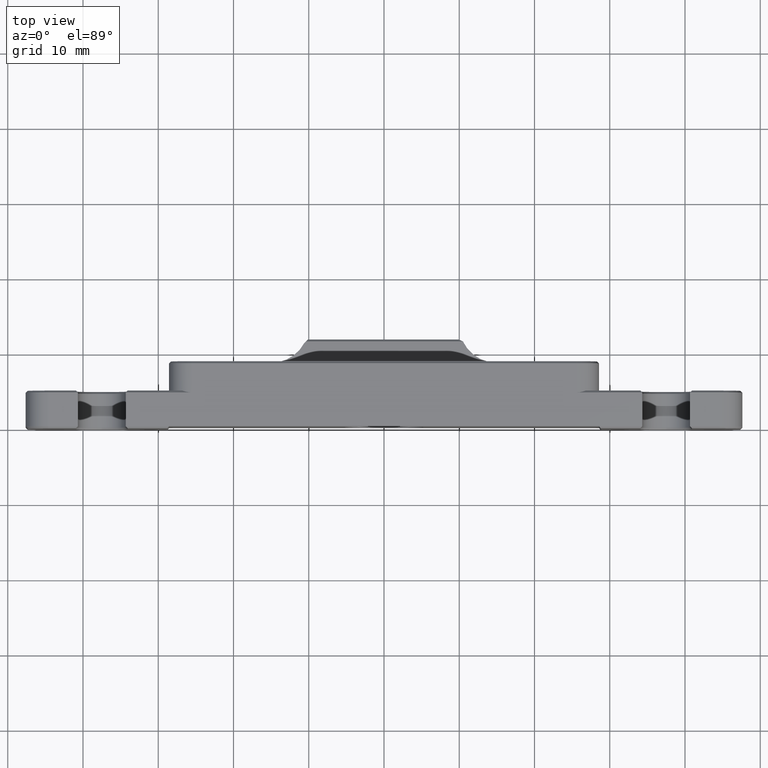
[diagram: clean part render]
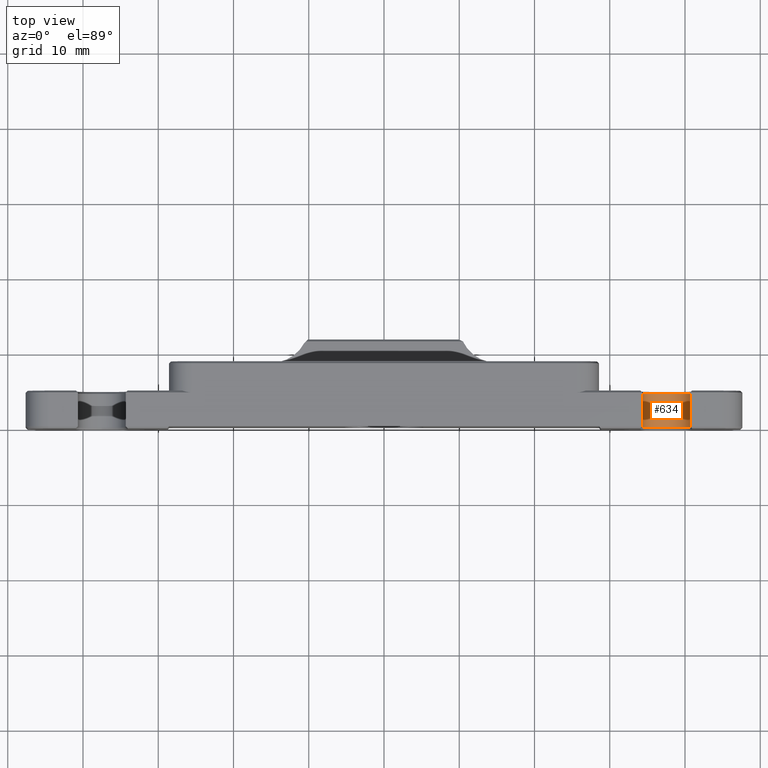
[diagram: same view with one face highlighted and labeled with its STEP entity id]
A machine part, top view. The second image highlights one B-rep face of the part: STEP entity #634.
In plain terms, the highlighted cylindrical surface (edge-blend (fillet) strip) has radius 3.175 mm, axis along (-0, 1, -0).
Its self-contained STEP definition (entity closure, byte-faithful):
#16 = CARTESIAN_POINT ( 'NONE',  ( 34.32500000000000995, 4.750000000000000000, -0.6400000000000102274 ) ) ;
#75 = LINE ( 'NONE', #3658, #1770 ) ;
#242 = EDGE_CURVE ( 'NONE', #3012, #1961, #2058, .T. ) ;
#272 = CARTESIAN_POINT ( 'NONE',  ( 37.50000000000000711, 4.750000000000000000, -0.6400000000000107825 ) ) ;
#451 = DIRECTION ( 'NONE',  ( -0.000000000000000000, 1.000000000000000000, -0.000000000000000000 ) ) ;
#487 = ORIENTED_EDGE ( 'NONE', *, *, #1417, .T. ) ;
#551 = AXIS2_PLACEMENT_3D ( 'NONE', #272, #3217, #4021 ) ;
#576 = FACE_OUTER_BOUND ( 'NONE', #2070, .T. ) ;
#587 = DIRECTION ( 'NONE',  ( -0.000000000000000000, -1.000000000000000000, -0.000000000000000000 ) ) ;
#629 = CARTESIAN_POINT ( 'NONE',  ( 40.67500000000000426, 0.2500000000000002220, -0.6400000000000116707 ) ) ;
#634 = ADVANCED_FACE ( 'NONE', ( #576 ), #4183, .F. ) ;
#877 = VERTEX_POINT ( 'NONE', #3155 ) ;
#940 = DIRECTION ( 'NONE',  ( 0.000000000000000000, 0.000000000000000000, 1.000000000000000000 ) ) ;
#1346 = AXIS2_PLACEMENT_3D ( 'NONE', #3677, #1792, #3654 ) ;
#1387 = CIRCLE ( 'NONE', #2710, 3.174999999999997158 ) ;
#1417 = EDGE_CURVE ( 'NONE', #877, #2889, #1745, .T. ) ;
#1419 = ORIENTED_EDGE ( 'NONE', *, *, #2258, .T. ) ;
#1662 = CARTESIAN_POINT ( 'NONE',  ( 37.50000000000000711, 0.2500000000000002220, -0.6400000000000107825 ) ) ;
#1745 = CIRCLE ( 'NONE', #2217, 3.174999999999997158 ) ;
#1770 = VECTOR ( 'NONE', #2213, 1000.000000000000000 ) ;
#1792 = DIRECTION ( 'NONE',  ( -0.000000000000000000, 1.000000000000000000, -0.000000000000000000 ) ) ;
#1961 = VERTEX_POINT ( 'NONE', #4089 ) ;
#2058 = LINE ( 'NONE', #4476, #4201 ) ;
#2070 = EDGE_LOOP ( 'NONE', ( #3920, #487, #1419, #2415, #2492 ) ) ;
#2119 = DIRECTION ( 'NONE',  ( 0.000000000000000000, 0.000000000000000000, 1.000000000000000000 ) ) ;
#2213 = DIRECTION ( 'NONE',  ( -0.000000000000000000, 1.000000000000000000, -0.000000000000000000 ) ) ;
#2217 = AXIS2_PLACEMENT_3D ( 'NONE', #4701, #2860, #2119 ) ;
#2258 = EDGE_CURVE ( 'NONE', #2889, #3012, #1387, .T. ) ;
#2415 = ORIENTED_EDGE ( 'NONE', *, *, #242, .T. ) ;
#2492 = ORIENTED_EDGE ( 'NONE', *, *, #4754, .T. ) ;
#2710 = AXIS2_PLACEMENT_3D ( 'NONE', #1662, #587, #940 ) ;
#2860 = DIRECTION ( 'NONE',  ( -0.000000000000000000, -1.000000000000000000, -0.000000000000000000 ) ) ;
#2872 = CIRCLE ( 'NONE', #551, 3.174999999999997158 ) ;
#2889 = VERTEX_POINT ( 'NONE', #3965 ) ;
#3012 = VERTEX_POINT ( 'NONE', #629 ) ;
#3155 = CARTESIAN_POINT ( 'NONE',  ( 34.32500000000000995, 0.2500000000000002220, -0.6400000000000102274 ) ) ;
#3217 = DIRECTION ( 'NONE',  ( 0.000000000000000000, 1.000000000000000000, 0.000000000000000000 ) ) ;
#3328 = VERTEX_POINT ( 'NONE', #16 ) ;
#3654 = DIRECTION ( 'NONE',  ( 0.000000000000000000, 0.000000000000000000, 1.000000000000000000 ) ) ;
#3658 = CARTESIAN_POINT ( 'NONE',  ( 34.32500000000000995, 0.000000000000000000, -0.6400000000000102274 ) ) ;
#3677 = CARTESIAN_POINT ( 'NONE',  ( 37.50000000000000711, 0.000000000000000000, -0.6400000000000107825 ) ) ;
#3920 = ORIENTED_EDGE ( 'NONE', *, *, #4489, .F. ) ;
#3965 = CARTESIAN_POINT ( 'NONE',  ( 37.50000000000000711, 0.2500000000000002220, -3.815000000000007940 ) ) ;
#4021 = DIRECTION ( 'NONE',  ( 0.000000000000000000, 0.000000000000000000, 1.000000000000000000 ) ) ;
#4089 = CARTESIAN_POINT ( 'NONE',  ( 40.67500000000000426, 4.750000000000000000, -0.6400000000000116707 ) ) ;
#4183 = CYLINDRICAL_SURFACE ( 'NONE', #1346, 3.174999999999997158 ) ;
#4201 = VECTOR ( 'NONE', #451, 1000.000000000000000 ) ;
#4476 = CARTESIAN_POINT ( 'NONE',  ( 40.67500000000000426, 0.000000000000000000, -0.6400000000000116707 ) ) ;
#4489 = EDGE_CURVE ( 'NONE', #877, #3328, #75, .T. ) ;
#4701 = CARTESIAN_POINT ( 'NONE',  ( 37.50000000000000711, 0.2500000000000002220, -0.6400000000000107825 ) ) ;
#4754 = EDGE_CURVE ( 'NONE', #1961, #3328, #2872, .T. ) ;